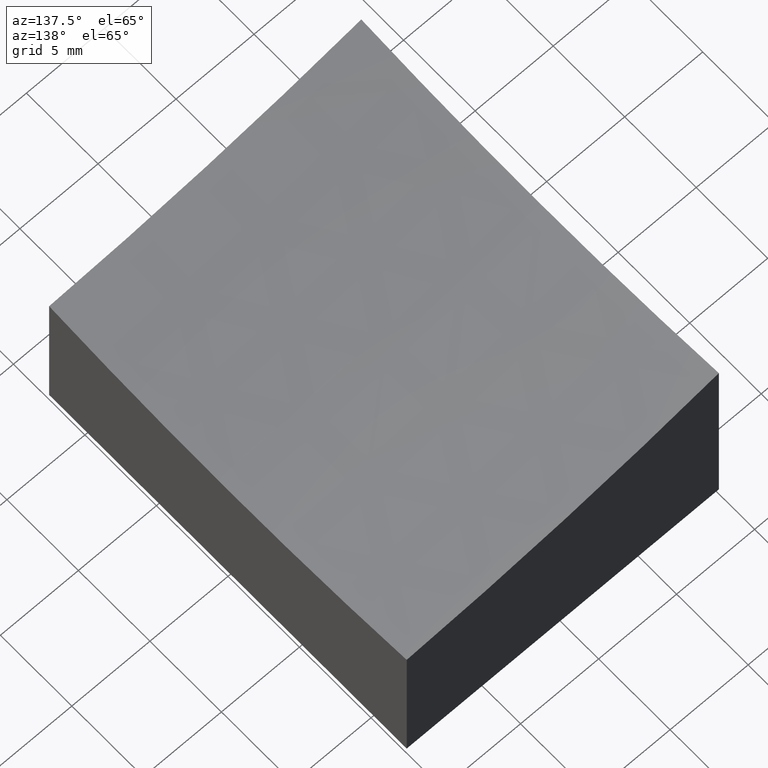
[diagram: clean part render]
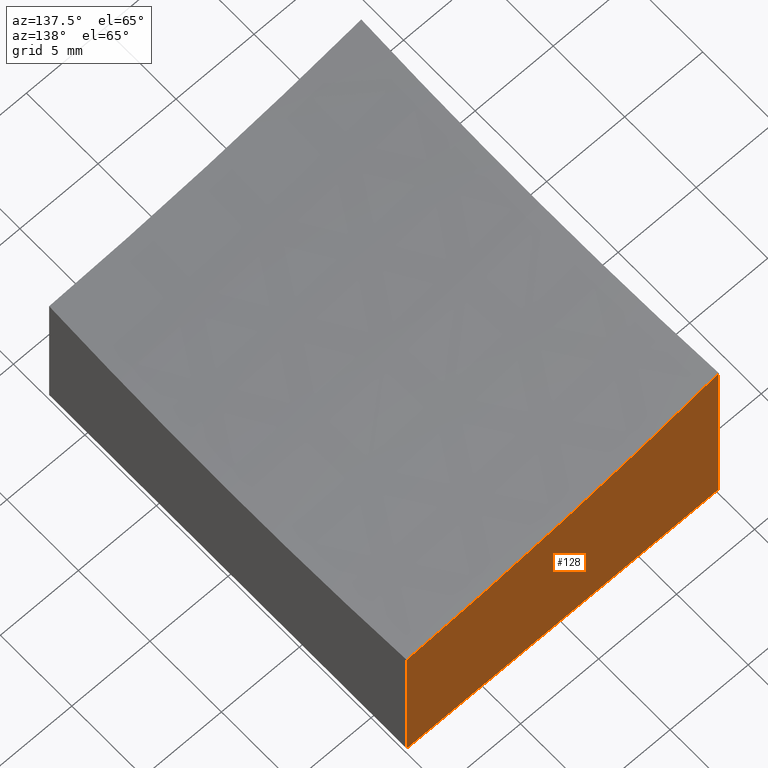
[diagram: same view with one face highlighted and labeled with its STEP entity id]
A machine part, auxiliary view. The second image highlights one B-rep face of the part: STEP entity #128.
In plain terms, the highlighted planar face has unit normal (0, -1, 0).
Its self-contained STEP definition (entity closure, byte-faithful):
#6 = AXIS2_PLACEMENT_3D ( 'NONE', #168, #207, #15 ) ;
#15 = DIRECTION ( 'NONE',  ( 1.000000000000000000, 1.734723475976807094E-16, 0.000000000000000000 ) ) ;
#20 = FACE_OUTER_BOUND ( 'NONE', #52, .T. ) ;
#24 = VECTOR ( 'NONE', #123, 1000.000000000000000 ) ;
#37 = CARTESIAN_POINT ( 'NONE',  ( 10.00000000000000178, 12.50000000000000000, 10.00000000000000000 ) ) ;
#52 = EDGE_LOOP ( 'NONE', ( #213, #63, #277, #120 ) ) ;
#56 = LINE ( 'NONE', #249, #24 ) ;
#63 = ORIENTED_EDGE ( 'NONE', *, *, #200, .T. ) ;
#67 = EDGE_CURVE ( 'NONE', #155, #105, #56, .T. ) ;
#70 = DIRECTION ( 'NONE',  ( 1.000000000000000000, 1.748436918438156363E-16, 0.000000000000000000 ) ) ;
#71 = CARTESIAN_POINT ( 'NONE',  ( -9.999999999999998224, 12.49999999999999645, 2.985678151642384925 ) ) ;
#72 = CIRCLE ( 'NONE', #203, 99.21567416492216296 ) ;
#102 = LINE ( 'NONE', #160, #162 ) ;
#105 = VERTEX_POINT ( 'NONE', #274 ) ;
#114 = CARTESIAN_POINT ( 'NONE',  ( 10.00000000000000178, 12.50000000000000000, -0.08960591303207310343 ) ) ;
#120 = ORIENTED_EDGE ( 'NONE', *, *, #140, .T. ) ;
#123 = DIRECTION ( 'NONE',  ( -0.000000000000000000, -0.000000000000000000, -1.000000000000000000 ) ) ;
#124 = PLANE ( 'NONE',  #6 ) ;
#128 = ADVANCED_FACE ( 'NONE', ( #20 ), #124, .F. ) ;
#136 = DIRECTION ( 'NONE',  ( -1.000000000000000000, -1.734723475976807094E-16, 0.000000000000000000 ) ) ;
#140 = EDGE_CURVE ( 'NONE', #192, #105, #102, .T. ) ;
#143 = VERTEX_POINT ( 'NONE', #114 ) ;
#155 = VERTEX_POINT ( 'NONE', #71 ) ;
#160 = CARTESIAN_POINT ( 'NONE',  ( 10.00000000000000178, 12.50000000000000000, -10.00000000000000000 ) ) ;
#162 = VECTOR ( 'NONE', #136, 1000.000000000000000 ) ;
#168 = CARTESIAN_POINT ( 'NONE',  ( 10.00000000000000178, 12.50000000000000000, 10.00000000000000000 ) ) ;
#176 = CARTESIAN_POINT ( 'NONE',  ( 15.00000000000001421, 12.50000000000000178, 99.00000000000000000 ) ) ;
#184 = LINE ( 'NONE', #37, #225 ) ;
#192 = VERTEX_POINT ( 'NONE', #221 ) ;
#200 = EDGE_CURVE ( 'NONE', #155, #143, #72, .T. ) ;
#203 = AXIS2_PLACEMENT_3D ( 'NONE', #176, #259, #70 ) ;
#205 = DIRECTION ( 'NONE',  ( -0.000000000000000000, -0.000000000000000000, -1.000000000000000000 ) ) ;
#207 = DIRECTION ( 'NONE',  ( 1.734723475976807094E-16, -1.000000000000000000, 0.000000000000000000 ) ) ;
#213 = ORIENTED_EDGE ( 'NONE', *, *, #67, .F. ) ;
#221 = CARTESIAN_POINT ( 'NONE',  ( 10.00000000000000178, 12.50000000000000000, -10.00000000000000000 ) ) ;
#224 = EDGE_CURVE ( 'NONE', #143, #192, #184, .T. ) ;
#225 = VECTOR ( 'NONE', #205, 1000.000000000000000 ) ;
#249 = CARTESIAN_POINT ( 'NONE',  ( -9.999999999999998224, 12.49999999999999645, 10.00000000000000000 ) ) ;
#259 = DIRECTION ( 'NONE',  ( 1.734723475976807094E-16, -1.000000000000000000, 0.000000000000000000 ) ) ;
#274 = CARTESIAN_POINT ( 'NONE',  ( -9.999999999999998224, 12.49999999999999645, -10.00000000000000000 ) ) ;
#277 = ORIENTED_EDGE ( 'NONE', *, *, #224, .T. ) ;